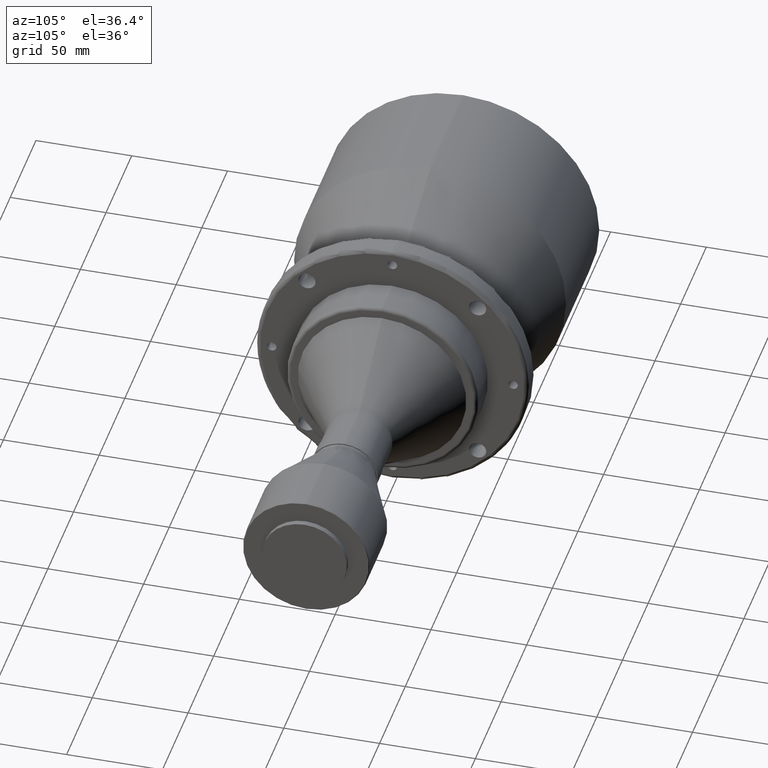
[diagram: clean part render]
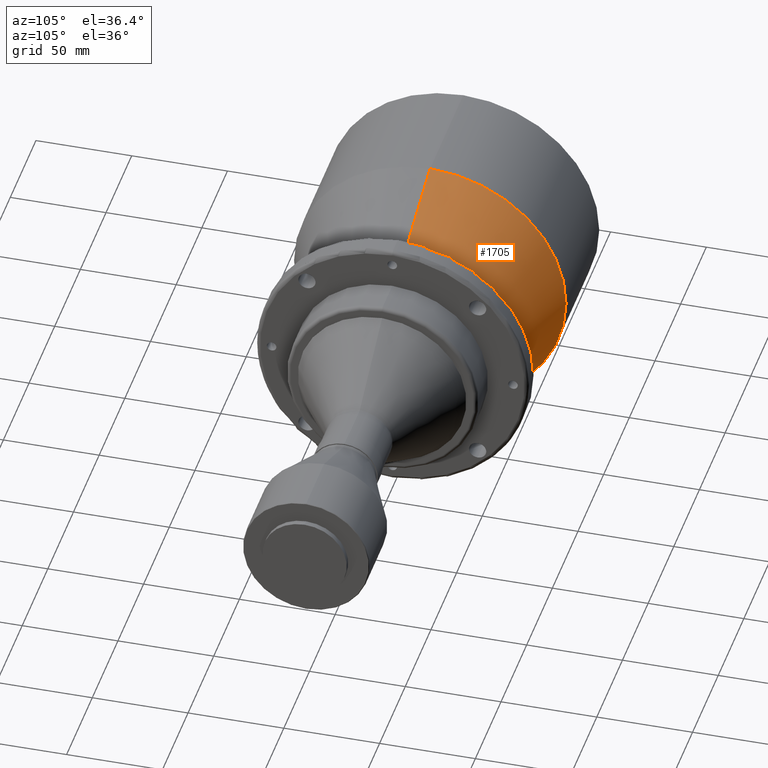
[diagram: same view with one face highlighted and labeled with its STEP entity id]
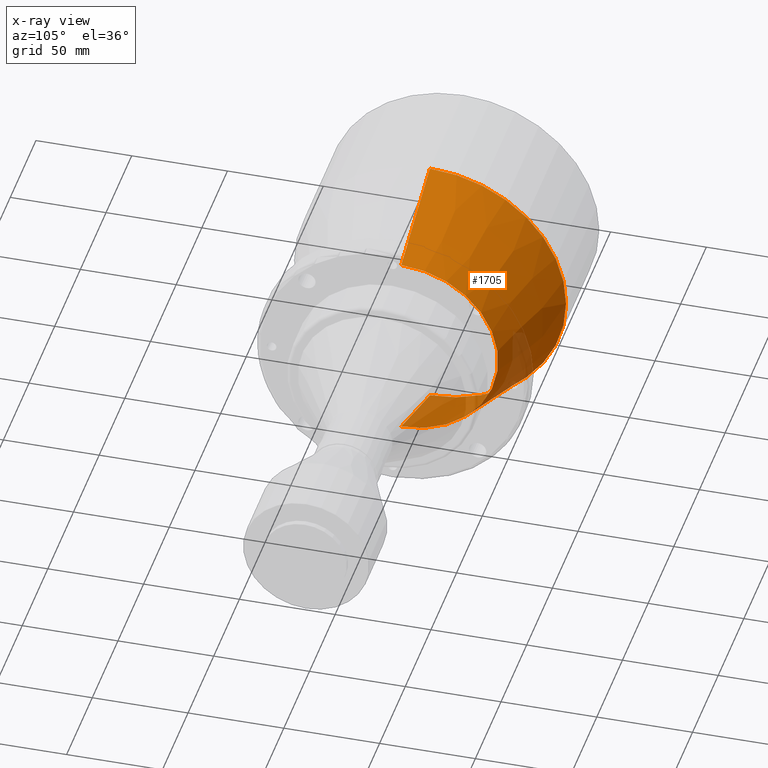
[diagram: x-ray of the same camera — body ghosted, the highlighted face saturated]
A machine part, auxiliary view. The second image highlights one B-rep face of the part: STEP entity #1705.
The next image is the same camera in x-ray: the body ghosted, the highlighted face saturated — about 13% of this face is hidden behind the body in this view.
In plain terms, the highlighted conical surface has half-angle 20 deg.
Its self-contained STEP definition (entity closure, byte-faithful):
#78 = VECTOR ( 'NONE', #995, 999.9999999999998900 ) ;
#108 = CARTESIAN_POINT ( 'NONE',  ( 121.1319194266972900, 6.192996262290270000E-015, -50.56965213645335000 ) ) ;
#120 = DIRECTION ( 'NONE',  ( -1.000000000000000000, -0.0000000000000000000, -0.0000000000000000000 ) ) ;
#155 = ORIENTED_EDGE ( 'NONE', *, *, #174, .T. ) ;
#159 = CARTESIAN_POINT ( 'NONE',  ( 121.1319194266972900, 0.0000000000000000000, 0.0000000000000000000 ) ) ;
#174 = EDGE_CURVE ( 'NONE', #1379, #642, #743, .T. ) ;
#186 = EDGE_CURVE ( 'NONE', #642, #225, #1757, .T. ) ;
#225 = VERTEX_POINT ( 'NONE', #1153 ) ;
#262 = CARTESIAN_POINT ( 'NONE',  ( 121.1319194266972900, 0.0000000000000000000, 0.0000000000000000000 ) ) ;
#386 = ORIENTED_EDGE ( 'NONE', *, *, #186, .T. ) ;
#413 = DIRECTION ( 'NONE',  ( -0.9396926207859082100, 4.188538737677001600E-017, -0.3420201433256695500 ) ) ;
#463 = DIRECTION ( 'NONE',  ( 0.0000000000000000000, 0.0000000000000000000, 1.000000000000000000 ) ) ;
#525 = ORIENTED_EDGE ( 'NONE', *, *, #806, .F. ) ;
#536 = DIRECTION ( 'NONE',  ( 0.0000000000000000000, 0.0000000000000000000, 1.000000000000000000 ) ) ;
#537 = AXIS2_PLACEMENT_3D ( 'NONE', #262, #120, #536 ) ;
#642 = VERTEX_POINT ( 'NONE', #1663 ) ;
#666 = AXIS2_PLACEMENT_3D ( 'NONE', #159, #1724, #1300 ) ;
#741 = VECTOR ( 'NONE', #413, 999.9999999999998900 ) ;
#743 = CIRCLE ( 'NONE', #537, 50.56965213645335000 ) ;
#806 = EDGE_CURVE ( 'NONE', #1379, #1664, #1651, .T. ) ;
#848 = AXIS2_PLACEMENT_3D ( 'NONE', #1188, #1612, #463 ) ;
#995 = DIRECTION ( 'NONE',  ( -0.9396926207859082100, 0.0000000000000000000, 0.3420201433256695500 ) ) ;
#1072 = CARTESIAN_POINT ( 'NONE',  ( 65.00000000000000000, 0.0000000000000000000, 71.00000000000001400 ) ) ;
#1153 = CARTESIAN_POINT ( 'NONE',  ( 65.00000000000000000, 8.694992273946208100E-015, -71.00000000000001400 ) ) ;
#1188 = CARTESIAN_POINT ( 'NONE',  ( 65.00000000000000000, 0.0000000000000000000, 0.0000000000000000000 ) ) ;
#1197 = FACE_OUTER_BOUND ( 'NONE', #1208, .T. ) ;
#1208 = EDGE_LOOP ( 'NONE', ( #155, #386, #1795, #525 ) ) ;
#1223 = CIRCLE ( 'NONE', #848, 71.00000000000001400 ) ;
#1234 = CARTESIAN_POINT ( 'NONE',  ( 121.1319194266972900, 0.0000000000000000000, 50.56965213645334200 ) ) ;
#1300 = DIRECTION ( 'NONE',  ( 0.0000000000000000000, 0.0000000000000000000, 1.000000000000000000 ) ) ;
#1379 = VERTEX_POINT ( 'NONE', #1234 ) ;
#1533 = CONICAL_SURFACE ( 'NONE', #666, 50.56965213645335000, 0.3490658503988667300 ) ;
#1564 = CARTESIAN_POINT ( 'NONE',  ( 121.1319194266972900, 0.0000000000000000000, 50.56965213645335000 ) ) ;
#1612 = DIRECTION ( 'NONE',  ( -1.000000000000000000, -0.0000000000000000000, -0.0000000000000000000 ) ) ;
#1651 = LINE ( 'NONE', #1564, #78 ) ;
#1663 = CARTESIAN_POINT ( 'NONE',  ( 121.1319194266972900, 6.192996262290269200E-015, -50.56965213645334200 ) ) ;
#1664 = VERTEX_POINT ( 'NONE', #1072 ) ;
#1705 = ADVANCED_FACE ( 'NONE', ( #1197 ), #1533, .T. ) ;
#1724 = DIRECTION ( 'NONE',  ( -1.000000000000000000, -0.0000000000000000000, -0.0000000000000000000 ) ) ;
#1757 = LINE ( 'NONE', #108, #741 ) ;
#1795 = ORIENTED_EDGE ( 'NONE', *, *, #1829, .F. ) ;
#1829 = EDGE_CURVE ( 'NONE', #1664, #225, #1223, .T. ) ;